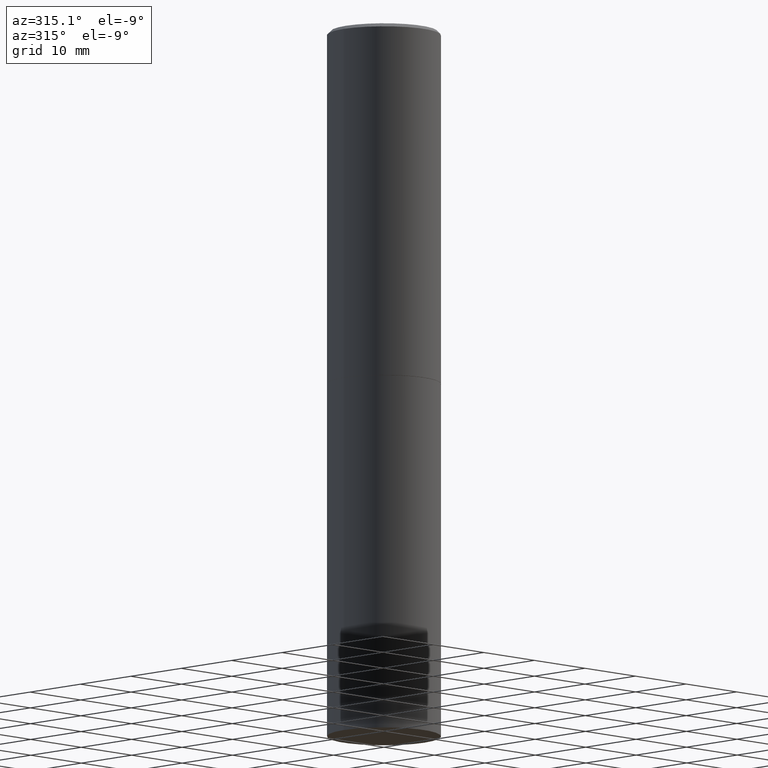
[diagram: clean part render]
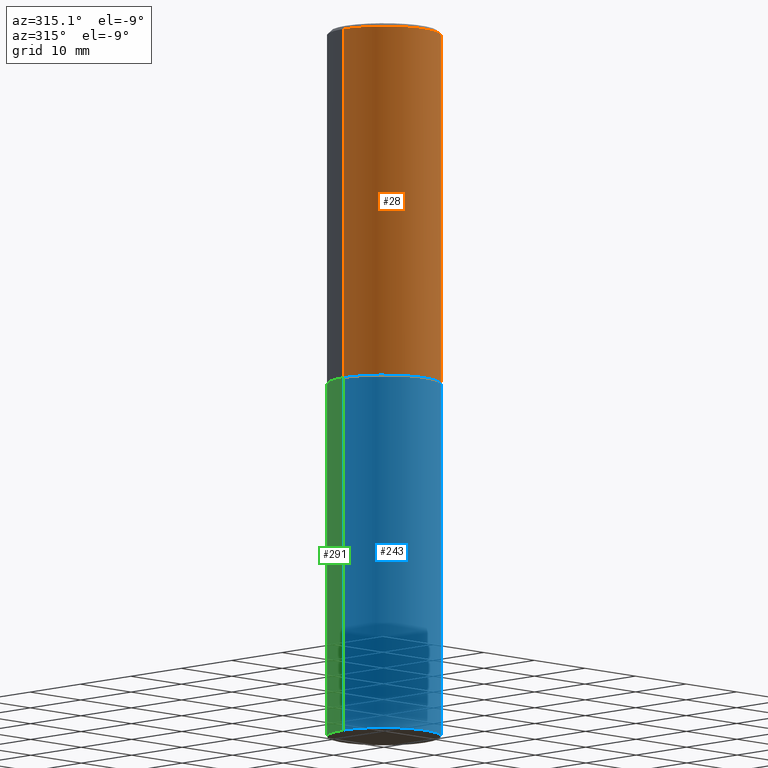
[diagram: same view with three faces highlighted in distinct colors, each labeled with its STEP entity id]
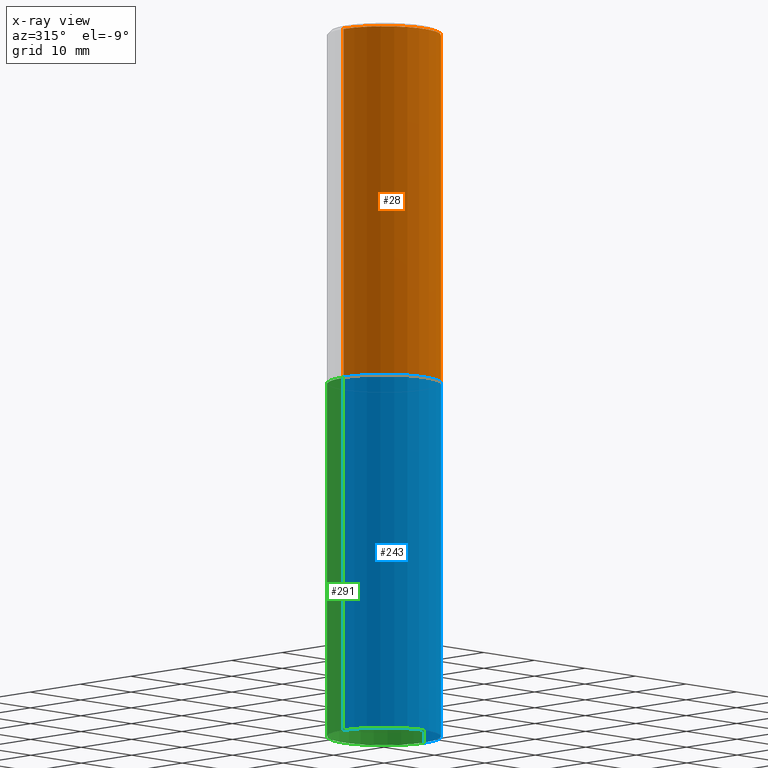
[diagram: x-ray of the same camera — body ghosted, the three highlighted faces saturated]
A machine part, auxiliary view with three faces highlighted in distinct colors.
The next image is the same camera in x-ray (body ghosted, the three faces saturated) — at least one of them is partly hidden behind the body in this view.
Their STEP definitions:

[orange] entity #28 — the highlighted cylindrical surface (partial cylindrical patch) has radius 7.9997 mm, axis along (-0, 0, 1).
#3 = EDGE_CURVE ( 'NONE', #113, #327, #360, .T. ) ;
#4 = CARTESIAN_POINT ( 'NONE',  ( 0.000000000000000000, 0.000000000000000000, 0.000000000000000000 ) ) ;
#10 = FACE_OUTER_BOUND ( 'NONE', #64, .T. ) ;
#28 = ADVANCED_FACE ( 'NONE', ( #10 ), #259, .T. ) ;
#37 = ORIENTED_EDGE ( 'NONE', *, *, #3, .F. ) ;
#42 = ORIENTED_EDGE ( 'NONE', *, *, #325, .T. ) ;
#43 = LINE ( 'NONE', #162, #300 ) ;
#47 = DIRECTION ( 'NONE',  ( -2.445468806185136877E-29, 3.491481338843145188E-15, 1.000000000000000000 ) ) ;
#53 = AXIS2_PLACEMENT_3D ( 'NONE', #234, #353, #260 ) ;
#64 = EDGE_LOOP ( 'NONE', ( #92, #312, #42, #37 ) ) ;
#79 = CARTESIAN_POINT ( 'NONE',  ( -0.3149499999999997302, 2.129454468560424601E-15, -0.02000000000000008021 ) ) ;
#80 = CARTESIAN_POINT ( 'NONE',  ( 0.3149499999999998967, -2.199284095337288688E-15, 1.535751875536929289E-29 ) ) ;
#92 = ORIENTED_EDGE ( 'NONE', *, *, #211, .F. ) ;
#113 = VERTEX_POINT ( 'NONE', #79 ) ;
#120 = CIRCLE ( 'NONE', #249, 0.3149500000000000077 ) ;
#131 = DIRECTION ( 'NONE',  ( -2.445468806185136597E-29, 3.491481338843145583E-15, 1.000000000000000000 ) ) ;
#162 = CARTESIAN_POINT ( 'NONE',  ( -0.3149499999999998967, 2.237854346276434801E-15, -1.549218606675782116E-29 ) ) ;
#169 = LINE ( 'NONE', #80, #188 ) ;
#173 = VERTEX_POINT ( 'NONE', #304 ) ;
#188 = VECTOR ( 'NONE', #47, 39.37007874015748143 ) ;
#193 = CARTESIAN_POINT ( 'NONE',  ( -0.3149500000000000077, -1.231805234198938239E-15, -1.967500000000000027 ) ) ;
#207 = DIRECTION ( 'NONE',  ( -2.445468806185136597E-29, 3.491481338843145583E-15, 1.000000000000000000 ) ) ;
#211 = EDGE_CURVE ( 'NONE', #364, #113, #43, .T. ) ;
#219 = EDGE_CURVE ( 'NONE', #364, #173, #120, .T. ) ;
#220 = CARTESIAN_POINT ( 'NONE',  ( 0.3149499999999997302, -2.230543471175005478E-15, -0.02000000000000008021 ) ) ;
#226 = AXIS2_PLACEMENT_3D ( 'NONE', #4, #131, #345 ) ;
#234 = CARTESIAN_POINT ( 'NONE',  ( 4.890937612370293302E-31, -6.982962677686318726E-17, -0.02000000000000008021 ) ) ;
#249 = AXIS2_PLACEMENT_3D ( 'NONE', #351, #207, #319 ) ;
#259 = CYLINDRICAL_SURFACE ( 'NONE', #226, 0.3149499999999998967 ) ;
#260 = DIRECTION ( 'NONE',  ( 1.000000000000000000, -6.982962677686266711E-15, 0.000000000000000000 ) ) ;
#266 = DIRECTION ( 'NONE',  ( -2.445468806185136877E-29, 3.491481338843145188E-15, 1.000000000000000000 ) ) ;
#300 = VECTOR ( 'NONE', #266, 39.37007874015748143 ) ;
#304 = CARTESIAN_POINT ( 'NONE',  ( 0.3149500000000000077, -9.068773629511178571E-15, -1.967500000000000027 ) ) ;
#312 = ORIENTED_EDGE ( 'NONE', *, *, #219, .T. ) ;
#319 = DIRECTION ( 'NONE',  ( 1.000000000000000000, -6.982962677686269866E-15, 0.000000000000000000 ) ) ;
#325 = EDGE_CURVE ( 'NONE', #173, #327, #169, .T. ) ;
#327 = VERTEX_POINT ( 'NONE', #220 ) ;
#345 = DIRECTION ( 'NONE',  ( 1.000000000000000000, -6.982962677686265922E-15, 4.876176775795935232E-29 ) ) ;
#351 = CARTESIAN_POINT ( 'NONE',  ( 4.811459876169256232E-29, -6.869489534173888700E-15, -1.967500000000000027 ) ) ;
#353 = DIRECTION ( 'NONE',  ( -2.445468806185136597E-29, 3.491481338843145583E-15, 1.000000000000000000 ) ) ;
#360 = CIRCLE ( 'NONE', #53, 0.3149499999999997302 ) ;
#364 = VERTEX_POINT ( 'NONE', #193 ) ;

[blue] entity #243 — the highlighted cylindrical surface (partial cylindrical patch) has radius 7.9997 mm, axis along (-0, 0, 1).
#11 = CARTESIAN_POINT ( 'NONE',  ( 0.3149500000000000077, -9.072265110850021578E-15, -1.968500000000000139 ) ) ;
#16 = DIRECTION ( 'NONE',  ( -2.445468806185136597E-29, 3.491481338843145583E-15, 1.000000000000000000 ) ) ;
#24 = DIRECTION ( 'NONE',  ( -2.445468806185136597E-29, 3.491481338843145583E-15, 1.000000000000000000 ) ) ;
#29 = VERTEX_POINT ( 'NONE', #67 ) ;
#50 = CARTESIAN_POINT ( 'NONE',  ( 9.627810689950883669E-29, -1.374596203102546341E-14, -3.937000000000000277 ) ) ;
#67 = CARTESIAN_POINT ( 'NONE',  ( -0.3149500000000000077, -8.071617176992661576E-15, -1.968500000000000139 ) ) ;
#75 = DIRECTION ( 'NONE',  ( -2.445468806185136877E-29, 3.491481338843145188E-15, 1.000000000000000000 ) ) ;
#77 = AXIS2_PLACEMENT_3D ( 'NONE', #191, #24, #142 ) ;
#78 = CARTESIAN_POINT ( 'NONE',  ( -0.3149500000000000077, -8.071617176992661576E-15, -3.937000000000000277 ) ) ;
#83 = CIRCLE ( 'NONE', #297, 0.3149500000000000077 ) ;
#84 = CARTESIAN_POINT ( 'NONE',  ( 0.3149500000000000077, -1.594524612636275486E-14, -3.937000000000000277 ) ) ;
#85 = EDGE_LOOP ( 'NONE', ( #156, #149, #264, #251 ) ) ;
#96 = DIRECTION ( 'NONE',  ( 1.000000000000000000, -6.982962677686269866E-15, 0.000000000000000000 ) ) ;
#97 = DIRECTION ( 'NONE',  ( 1.000000000000000000, -6.982962677686266711E-15, 0.000000000000000000 ) ) ;
#109 = EDGE_CURVE ( 'NONE', #172, #218, #112, .T. ) ;
#112 = LINE ( 'NONE', #209, #183 ) ;
#123 = EDGE_CURVE ( 'NONE', #303, #29, #190, .T. ) ;
#130 = CARTESIAN_POINT ( 'NONE',  ( 4.813905344975441835E-29, -6.872981015512731707E-15, -1.968500000000000139 ) ) ;
#142 = DIRECTION ( 'NONE',  ( 1.000000000000000000, -6.982962677686266711E-15, 4.876176775795936353E-29 ) ) ;
#149 = ORIENTED_EDGE ( 'NONE', *, *, #179, .T. ) ;
#156 = ORIENTED_EDGE ( 'NONE', *, *, #123, .F. ) ;
#170 = DIRECTION ( 'NONE',  ( -2.445468806185136597E-29, 3.491481338843145583E-15, 1.000000000000000000 ) ) ;
#172 = VERTEX_POINT ( 'NONE', #84 ) ;
#179 = EDGE_CURVE ( 'NONE', #303, #172, #83, .T. ) ;
#183 = VECTOR ( 'NONE', #280, 39.37007874015748143 ) ;
#190 = LINE ( 'NONE', #212, #277 ) ;
#191 = CARTESIAN_POINT ( 'NONE',  ( 0.000000000000000000, 0.000000000000000000, 0.000000000000000000 ) ) ;
#195 = EDGE_CURVE ( 'NONE', #29, #218, #270, .T. ) ;
#209 = CARTESIAN_POINT ( 'NONE',  ( 0.3149500000000000077, -2.199284095337289871E-15, 1.535751875536930130E-29 ) ) ;
#212 = CARTESIAN_POINT ( 'NONE',  ( -0.3149500000000000077, 2.237854346276435590E-15, -1.549218606675782676E-29 ) ) ;
#218 = VERTEX_POINT ( 'NONE', #11 ) ;
#222 = FACE_OUTER_BOUND ( 'NONE', #85, .T. ) ;
#243 = ADVANCED_FACE ( 'NONE', ( #222 ), #361, .T. ) ;
#251 = ORIENTED_EDGE ( 'NONE', *, *, #195, .F. ) ;
#264 = ORIENTED_EDGE ( 'NONE', *, *, #109, .T. ) ;
#270 = CIRCLE ( 'NONE', #284, 0.3149500000000000077 ) ;
#277 = VECTOR ( 'NONE', #75, 39.37007874015748143 ) ;
#280 = DIRECTION ( 'NONE',  ( -2.445468806185136877E-29, 3.491481338843145188E-15, 1.000000000000000000 ) ) ;
#284 = AXIS2_PLACEMENT_3D ( 'NONE', #130, #16, #97 ) ;
#297 = AXIS2_PLACEMENT_3D ( 'NONE', #50, #170, #96 ) ;
#303 = VERTEX_POINT ( 'NONE', #78 ) ;
#361 = CYLINDRICAL_SURFACE ( 'NONE', #77, 0.3149500000000000077 ) ;

[green] entity #291 — the highlighted cylindrical surface (partial cylindrical patch) has radius 7.9997 mm, axis along (-0, 0, 1).
#1 = DIRECTION ( 'NONE',  ( 1.000000000000000000, -6.982962677686269866E-15, 0.000000000000000000 ) ) ;
#5 = ORIENTED_EDGE ( 'NONE', *, *, #166, .T. ) ;
#8 = CARTESIAN_POINT ( 'NONE',  ( 9.627810689950883669E-29, -1.374596203102546341E-14, -3.937000000000000277 ) ) ;
#11 = CARTESIAN_POINT ( 'NONE',  ( 0.3149500000000000077, -9.072265110850021578E-15, -1.968500000000000139 ) ) ;
#29 = VERTEX_POINT ( 'NONE', #67 ) ;
#36 = AXIS2_PLACEMENT_3D ( 'NONE', #8, #233, #1 ) ;
#63 = EDGE_LOOP ( 'NONE', ( #5, #73, #283, #184 ) ) ;
#67 = CARTESIAN_POINT ( 'NONE',  ( -0.3149500000000000077, -8.071617176992661576E-15, -1.968500000000000139 ) ) ;
#69 = AXIS2_PLACEMENT_3D ( 'NONE', #267, #208, #71 ) ;
#71 = DIRECTION ( 'NONE',  ( 1.000000000000000000, -6.982962677686266711E-15, 0.000000000000000000 ) ) ;
#73 = ORIENTED_EDGE ( 'NONE', *, *, #123, .T. ) ;
#75 = DIRECTION ( 'NONE',  ( -2.445468806185136877E-29, 3.491481338843145188E-15, 1.000000000000000000 ) ) ;
#78 = CARTESIAN_POINT ( 'NONE',  ( -0.3149500000000000077, -8.071617176992661576E-15, -3.937000000000000277 ) ) ;
#84 = CARTESIAN_POINT ( 'NONE',  ( 0.3149500000000000077, -1.594524612636275486E-14, -3.937000000000000277 ) ) ;
#91 = EDGE_CURVE ( 'NONE', #218, #29, #236, .T. ) ;
#109 = EDGE_CURVE ( 'NONE', #172, #218, #112, .T. ) ;
#112 = LINE ( 'NONE', #209, #183 ) ;
#114 = DIRECTION ( 'NONE',  ( 1.000000000000000000, -6.982962677686266711E-15, 4.876176775795936353E-29 ) ) ;
#123 = EDGE_CURVE ( 'NONE', #303, #29, #190, .T. ) ;
#159 = CIRCLE ( 'NONE', #36, 0.3149500000000000077 ) ;
#166 = EDGE_CURVE ( 'NONE', #172, #303, #159, .T. ) ;
#172 = VERTEX_POINT ( 'NONE', #84 ) ;
#183 = VECTOR ( 'NONE', #280, 39.37007874015748143 ) ;
#184 = ORIENTED_EDGE ( 'NONE', *, *, #109, .F. ) ;
#189 = FACE_OUTER_BOUND ( 'NONE', #63, .T. ) ;
#190 = LINE ( 'NONE', #212, #277 ) ;
#208 = DIRECTION ( 'NONE',  ( -2.445468806185136597E-29, 3.491481338843145583E-15, 1.000000000000000000 ) ) ;
#209 = CARTESIAN_POINT ( 'NONE',  ( 0.3149500000000000077, -2.199284095337289871E-15, 1.535751875536930130E-29 ) ) ;
#212 = CARTESIAN_POINT ( 'NONE',  ( -0.3149500000000000077, 2.237854346276435590E-15, -1.549218606675782676E-29 ) ) ;
#214 = DIRECTION ( 'NONE',  ( -2.445468806185136597E-29, 3.491481338843145583E-15, 1.000000000000000000 ) ) ;
#218 = VERTEX_POINT ( 'NONE', #11 ) ;
#233 = DIRECTION ( 'NONE',  ( -2.445468806185136597E-29, 3.491481338843145583E-15, 1.000000000000000000 ) ) ;
#236 = CIRCLE ( 'NONE', #69, 0.3149500000000000077 ) ;
#267 = CARTESIAN_POINT ( 'NONE',  ( 4.813905344975441835E-29, -6.872981015512731707E-15, -1.968500000000000139 ) ) ;
#277 = VECTOR ( 'NONE', #75, 39.37007874015748143 ) ;
#280 = DIRECTION ( 'NONE',  ( -2.445468806185136877E-29, 3.491481338843145188E-15, 1.000000000000000000 ) ) ;
#283 = ORIENTED_EDGE ( 'NONE', *, *, #91, .F. ) ;
#291 = ADVANCED_FACE ( 'NONE', ( #189 ), #365, .T. ) ;
#299 = CARTESIAN_POINT ( 'NONE',  ( 0.000000000000000000, 0.000000000000000000, 0.000000000000000000 ) ) ;
#303 = VERTEX_POINT ( 'NONE', #78 ) ;
#352 = AXIS2_PLACEMENT_3D ( 'NONE', #299, #214, #114 ) ;
#365 = CYLINDRICAL_SURFACE ( 'NONE', #352, 0.3149500000000000077 ) ;